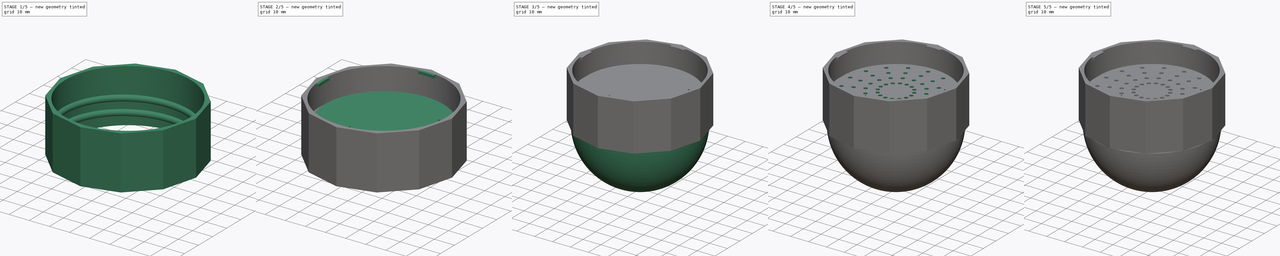
[diagram: build sequence overview — one tinted view per stage of 5, left to right]
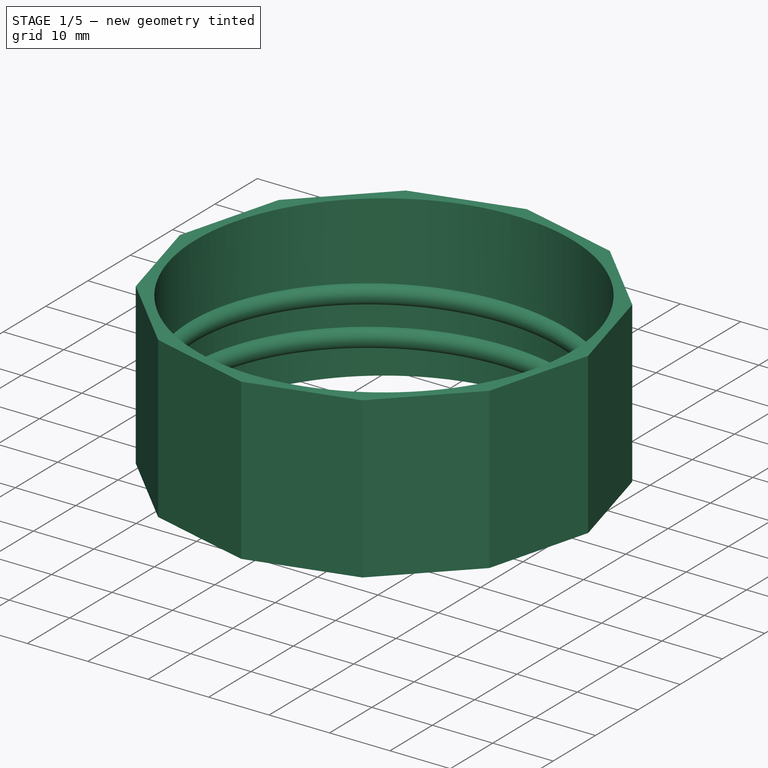
[diagram: stage 1 of 5 — iso view after this stage's code; geometry added in this stage tinted green]
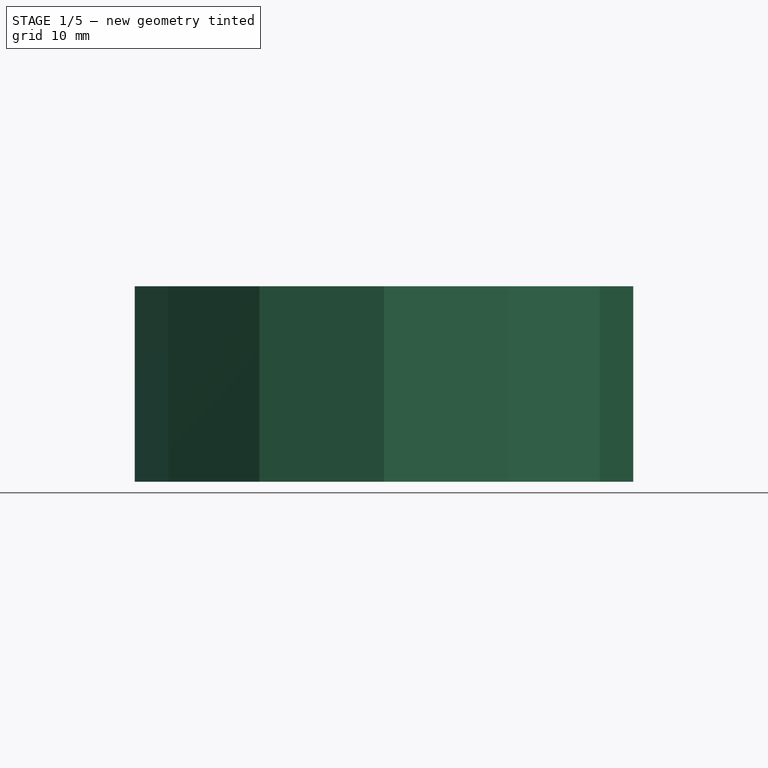
[diagram: stage 1 of 5 — front view after this stage's code; geometry added in this stage tinted green]
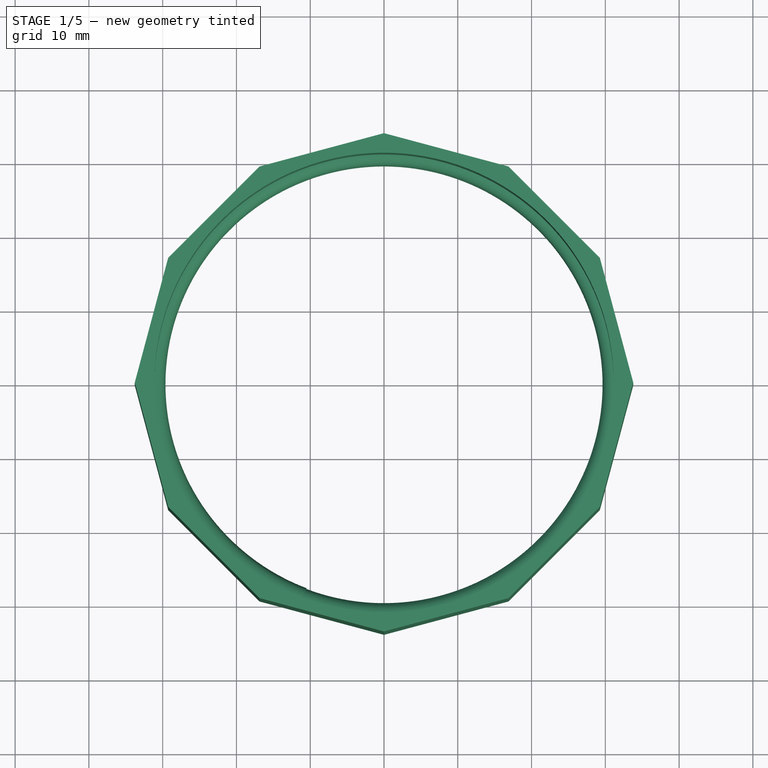
[diagram: stage 1 of 5 — top view after this stage's code; geometry added in this stage tinted green]
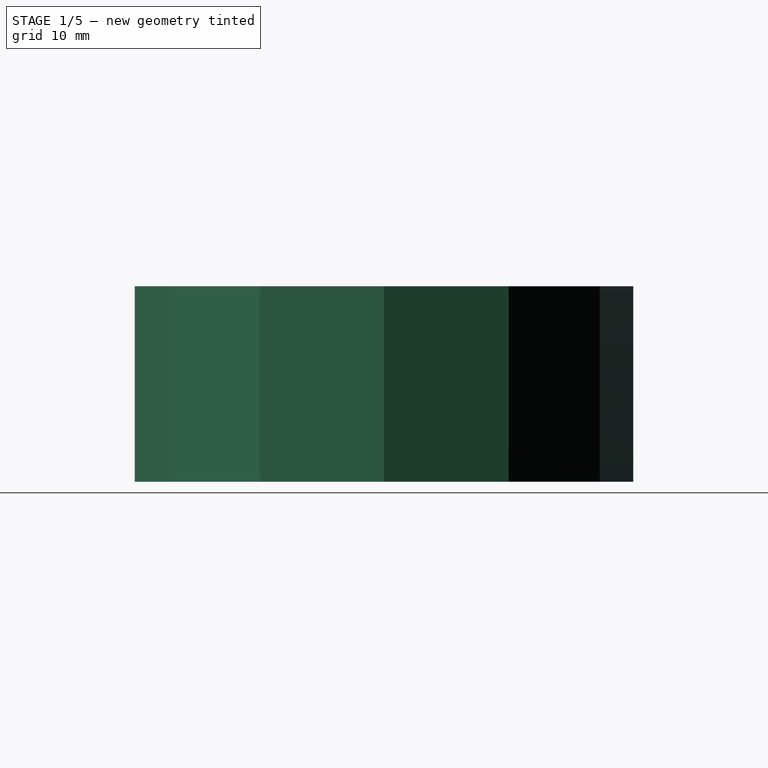
[diagram: stage 1 of 5 — right view after this stage's code; geometry added in this stage tinted green]
FCSTD DOCUMENT  (FreeCAD 2023.131R26244 +5365 (Git))
Label: Mason Jar Desiccant Lid - Flanged
License: All rights reserved
LicenseURL: http://en.wikipedia.org/wiki/All_rights_reserved
objects: Sketcher::SketchObject×10, PartDesign::Hole×4, PartDesign::Pad×3, PartDesign::AdditiveHelix×2, PartDesign::PolarPattern×2, PartDesign::Body×2, Spreadsheet::Sheet×1, PartDesign::AdditiveSphere×1, PartDesign::SubtractiveSphere×1, PartDesign::Pocket×1, PartDesign::Fillet×1
note: 67 computed .brp shape members not serialized (recipe doc carries the construction recipe); baked Part::Feature solids carry a one-line shape summary decoded from their .brp

FEATURE [Spreadsheet::Sheet] Spreadsheet  label="Parameters"
  PythonMode = false
  ShowCells = 0
  TreeRank = 1
  cells = A2=Ring Inner Diameter; B2(Ring_Inner_Diameter)=62.25; C2=Should be large enough to fit over the threads on the glass jar.; A3=Ring Min Thickness; B3(Ring_Min_Thickness)=1.5; C3=The thickness of the thinnest part of the ring.; A4=Glass Jar Ring Height; B4(Jar_Ring_Height)=10.5; C4=How much material will screw onto the glass jar.; A5=Desiccant Ring Height; B5(Desiccant_Right_Height)=16; C5=How much material will screw onto the desiccant container.; A6=Desiccant Wall Thickness; B6(Desiccant_Wall_Thickness)=1; C6=How thick the walls of the desiccant container should be.; A7=Piece Tolerance; B7(Tolerance)=0.2; C7=The tolerance between the Jar Lid and Desiccant Container.; A9=Thread Pitch; B9(Thread_Pitch)=6.5; C9=The thread pitch.; A10=Thread Width; B10(Thread_Width)=3; C10=The distance between two thread on the glass jar.; A11=Thread Height; B11(Thread_Height)=3; C11=The height of the threads from the inner (vertical) survace of the lid.; A12=Thread Offset; B12(Thread_Offset)=2; C12=Distance from the bottom or top of the ring where the threads start.; A14=Flange Height; B14(Flange_Height)=1.3; C14=The height of the threads from the inner survace of the lid.; A15=Flange Length; B15(Flange_Length)=8; C15=The linear length of each flange.; A16=Flange Count; B16(Flange_Count)=4; C16=The number of flanges to create; A18=Desiccant Opening Type; B18(Desiccant_Opening_Type)=Slot; C18=The type of opening to allow the desiccant to be inserted. One of the following: Hole, Slot, Both; A19=Hole Opening Diameter; B19(Hole_Opening_Diameter)==B5 - 2 * B6; C19=The diameter of the desiccant opening if "Hole" or "Both" is selected for the type.; A20=Slot Opening Width; B20(Slot_Opening_Width)=35; C20=The width of the desiccant opening if "Slot" or "Both" is selected for the type.; A21=Slot Opening Height; B21(Slot_Opening_Height)=8; C21=The height of the desiccant opening if "Slot" or "Both" is selected for the type.; A22=Desiccant Hole Diameter; B22(Desiccant_Hole_Diameter)=2; C22=The size of the holes in the bottom of the desiccant chamber.
FEATURE [Sketcher::SketchObject] Sketch
  ArcFitTolerance = 1e-06
  AttachmentSupport = -> [XY_Plane]
  ExternalBSplineMaxDegree = 5
  ExternalBSplineTolerance = 0.0001
  FullyConstrained = true
  InternalTolerance = 1e-06
  InvalidShape = false
  MakeInternals = false
  MapMode = 5
  Support = -> [XY_Plane]
  TreeRank = 14
  ValidateShape = true
  expr: Constraints[37] = <<Parameters>>.Ring_Inner_Diameter + <<Parameters>>.Ring_Min_Thickness * 2
  sketch-geometry (14):
    g0: LineSegment StartX=-29.2508 StartY=16.8879 StartZ=0 EndX=-33.7759 EndY=0 EndZ=0
    g1: LineSegment StartX=-33.7759 StartY=0 StartZ=0 EndX=-29.2508 EndY=-16.8879 EndZ=0
    g2: LineSegment StartX=-29.2508 StartY=-16.8879 StartZ=0 EndX=-16.8879 EndY=-29.2508 EndZ=0
    g3: LineSegment StartX=-16.8879 StartY=-29.2508 StartZ=0 EndX=3.979e-13 EndY=-33.7759 EndZ=0
    g4: LineSegment StartX=3.993e-13 StartY=-33.7759 StartZ=0 EndX=16.8879 EndY=-29.2508 EndZ=0
    g5: LineSegment StartX=16.8879 StartY=-29.2508 StartZ=0 EndX=29.2508 EndY=-16.8879 EndZ=0
    g6: LineSegment StartX=29.2508 StartY=-16.8879 StartZ=0 EndX=33.7759 EndY=2.665e-13 EndZ=0
    g7: LineSegment StartX=33.7759 StartY=2.65e-13 StartZ=0 EndX=29.2508 EndY=16.8879 EndZ=0
    g8: LineSegment StartX=29.2508 StartY=16.8879 StartZ=0 EndX=16.8879 EndY=29.2508 EndZ=0
    g9: LineSegment StartX=16.8879 StartY=29.2508 StartZ=0 EndX=-1.35e-13 EndY=33.7759 EndZ=0
    g10: LineSegment StartX=-1.334e-13 StartY=33.7759 StartZ=0 EndX=-16.8879 EndY=29.2508 EndZ=0
    g11: LineSegment StartX=-16.8879 StartY=29.2508 StartZ=0 EndX=-29.2508 EndY=16.8879 EndZ=0
    g12: Circle [constr] CenterX=0 CenterY=0 CenterZ=0 NormalX=0 NormalY=0 NormalZ=1 AngleXU=0 Radius=33.7759
    g13: Circle [constr] CenterX=0 CenterY=0 CenterZ=0 NormalX=0 NormalY=0 NormalZ=1 AngleXU=0 Radius=32.625
  constraints (30):
    c: Coincident(g0,g1)
    c: Coincident(g1,g2)
    c: Coincident(g2,g3)
    c: Coincident(g3,g4)
    c: Coincident(g4,g5)
    c: Coincident(g5,g6)
    c: Coincident(g6,g7)
    c: Coincident(g7,g8)
    c: Coincident(g8,g9)
    c: Coincident(g9,g10)
    c: Coincident(g10,g11)
    c: Coincident(g11,g0)
    c: Equal(g0, g1-g11) x11
    c: PointOnObject(g0,g12)
    c: PointOnObject(g1,g12)
    c: PointOnObject(g2,g12)
    c: PointOnObject(g3,g12)
    c: PointOnObject(g4,g12)
    c: PointOnObject(g5,g12)
    c: PointOnObject(g6,g12)
    c: PointOnObject(g7,g12)
    c: PointOnObject(g8,g12)
    c: PointOnObject(g9,g12)
    c: PointOnObject(g10,g12)
    c: PointOnObject(g11,g12)
    c: Coincident(g12,g-1)
    c: Coincident(g13,g12)
    c: Diameter(g13) = 65.25
    c: Tangent(g13,g9)
    c: PointOnObject(g0,g-1)
FEATURE [PartDesign::Pad] Pad  label="Lid"
  AddSubType = 0
  AlongSketchNormal = false
  AutoTaperInnerAngle = true
  CheckUpToFaceLimits = true
  ClaimChildren = false
  Direction = (0,0,1)
  Fit = 0
  FitJoin = 0
  InnerFit = 0
  InnerFitJoin = 0
  InvalidShape = false
  Length = 26.5
  Length2 = 100
  Linearize = true
  NewSolid = false
  Profile = -> Sketch
  Suppress = false
  TaperInnerAngle = 0
  TaperInnerAngleRev = 0
  TreeRank = 15
  Type = 0
  ValidateShape = true
  _ProfileBasedVersion = 1
  expr: Length = Spreadsheet.Jar_Ring_Height + <<Parameters>>.Desiccant_Right_Height
FEATURE [Sketcher::SketchObject] Sketch001  label="Hole"
  ArcFitTolerance = 1e-06
  AttachmentSupport = -> [Pad]
  ExternalBSplineMaxDegree = 5
  ExternalBSplineTolerance = 0.0001
  FullyConstrained = true
  InternalTolerance = 1e-06
  InvalidShape = false
  MakeInternals = false
  MapMode = 5
  Placement = pos=(0,0,26.5) rot=(0,0,1;0rad)
  Support = -> [Pad]
  TreeRank = 16
  ValidateShape = true
  expr: Constraints[1] = <<Parameters>>.Ring_Inner_Diameter
  sketch-geometry (1):
    g0: Circle CenterX=0 CenterY=0 CenterZ=0 NormalX=0 NormalY=0 NormalZ=1 AngleXU=0 Radius=31.125
  constraints (2):
    c: Coincident(g0,g-1)
    c: Diameter(g0) = 62.25
FEATURE [PartDesign::Hole] Hole  label="Bottle Opening"
  AddSubType = 1
  BaseFeature = -> Pad
  ClaimChildren = false
  CustomThreadClearance = 0
  Depth = 10.5
  DepthType = 1
  Diameter = 62.25
  DrillForDepth = false
  DrillPoint = 0
  DrillPointAngle = 118
  Fit = 0
  FitJoin = 0
  HoleCutCountersinkAngle = 90
  HoleCutCustomValues = false
  HoleCutDepth = 0
  HoleCutDiameter = 87.1
  HoleCutType = 0
  InnerFit = 0
  InnerFitJoin = 0
  InvalidShape = false
  Linearize = true
  ModelThread = false
  NewSolid = false
  Profile = -> Sketch001
  Suppress = false
  Tapered = false
  TaperedAngle = 90
  ThreadClass = 0
  ThreadDepth = 200.263
  ThreadDepthType = 0
  ThreadDirection = 0
  ThreadFit = 0
  ThreadSize = 0
  ThreadType = 0
  Threaded = false
  TreeRank = 17
  UseCustomThreadClearance = false
  ValidateShape = true
  _ProfileBasedVersion = 1
  expr: Depth = Spreadsheet.Jar_Ring_Height
  expr: Diameter = <<Parameters>>.Ring_Inner_Diameter
FEATURE [Sketcher::SketchObject] Sketch002  label="Thread Profile"
  ArcFitTolerance = 1e-06
  AttachmentSupport = -> [XZ_Plane]
  ExternalBSplineMaxDegree = 5
  ExternalBSplineTolerance = 0.0001
  FullyConstrained = true
  InternalTolerance = 1e-06
  InvalidShape = false
  MakeInternals = false
  MapMode = 5
  Placement = pos=(0,0,0) rot=(1,0,0;1.5708rad)
  Support = -> [XZ_Plane]
  TreeRank = 18
  ValidateShape = true
  expr: Constraints[1] = <<Parameters>>.Thread_Width
  expr: Constraints[2] = <<Parameters>>.Thread_Offset
  expr: Constraints[3] = -<<Parameters>>.Ring_Inner_Diameter / 2
  expr: Constraints[6] = <<Parameters>>.Thread_Width
  sketch-geometry (2):
    g0: LineSegment StartX=31.125 StartY=5 StartZ=0 EndX=31.125 EndY=2 EndZ=0
    g1: ArcOfCircle CenterX=31.125 CenterY=3.5 CenterZ=0 NormalX=0 NormalY=0 NormalZ=1 AngleXU=0 Radius=1.5 StartAngle=1.57079 EndAngle=4.71239
  constraints (7):
    c: Vertical(g0)
    c: Distance(g0,g0) = 3
    c: DistanceY(g-1,g0) = 2
    c: DistanceX(g0,g-1) = -31.125
    c: Coincident(g1,g0)
    c: Coincident(g1,g0)
    c: Diameter(g1) = 3
FEATURE [PartDesign::AdditiveHelix] Helix  label="Threads"
  AddSubType = 0
  Angle = 0
  Axis = (0,-2e-16,1)
  Base = (0,0,0)
  BaseFeature = -> Hole
  ClaimChildren = false
  Fit = 0
  FitJoin = 0
  Growth = 0
  HasBeenEdited = true
  Height = 11
  InnerFit = 0
  InnerFitJoin = 0
  InvalidShape = false
  LeftHanded = false
  Linearize = true
  Mode = 0
  NewSolid = false
  Outside = false
  Pitch = 6.5
  Profile = -> Sketch002
  ReferenceAxis = -> Sketch002 [V_Axis]
  Suppress = false
  TreeRank = 19
  Turns = 1.69231
  ValidateShape = true
  _ProfileBasedVersion = 1
  expr: Height = <<Parameters>>.Desiccant_Right_Height - <<Parameters>>.Thread_Height - <<Parameters>>.Thread_Offset
  expr: Pitch = <<Parameters>>.Thread_Pitch
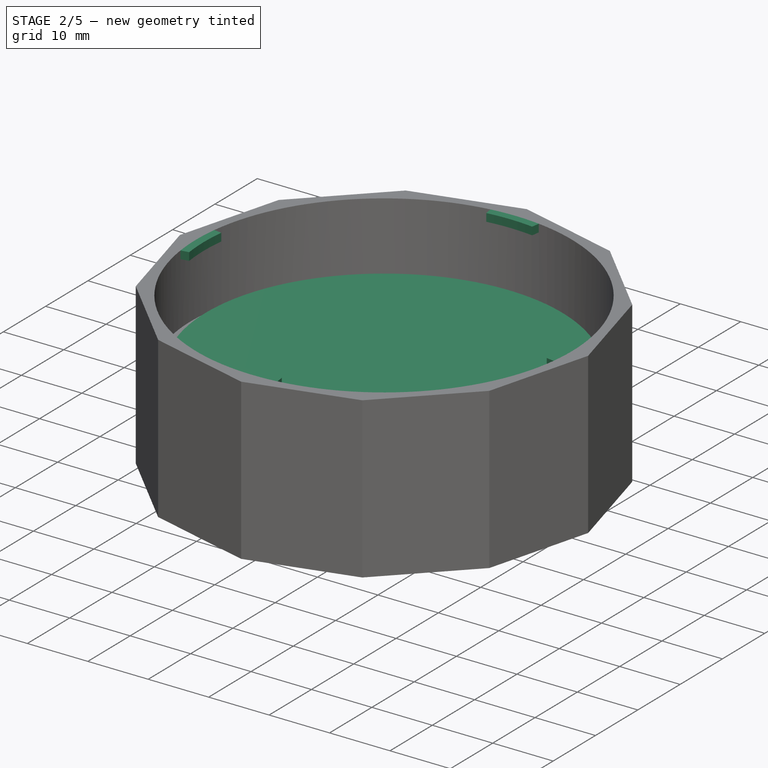
[diagram: stage 2 of 5 — iso view after this stage's code; geometry added in this stage tinted green]
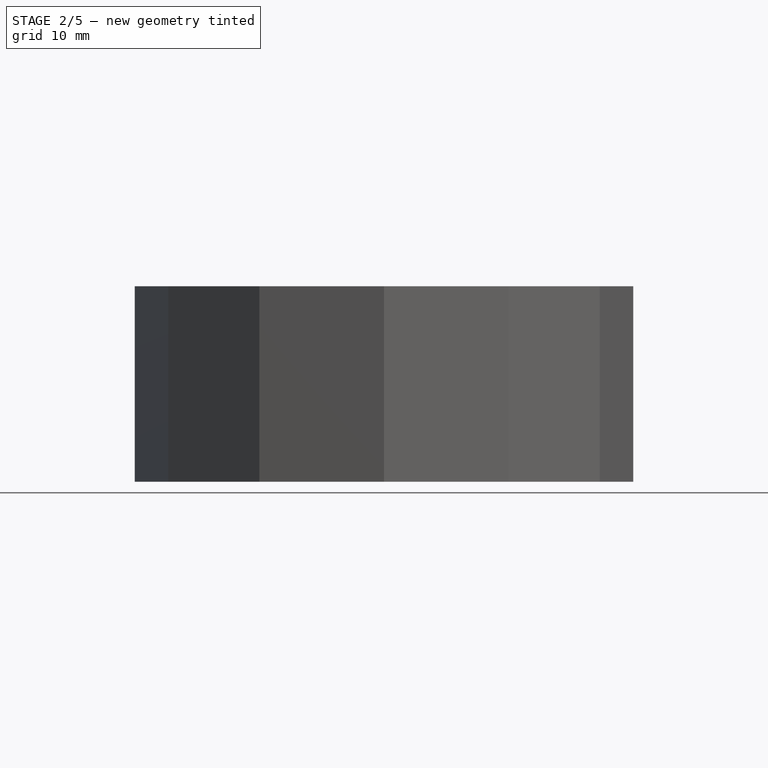
[diagram: stage 2 of 5 — front view after this stage's code; geometry added in this stage tinted green]
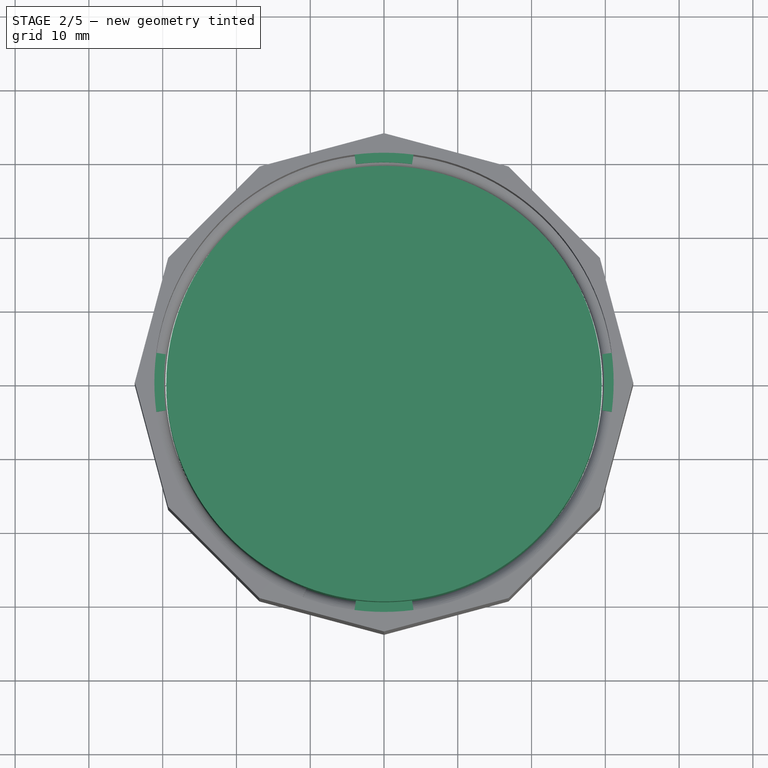
[diagram: stage 2 of 5 — top view after this stage's code; geometry added in this stage tinted green]
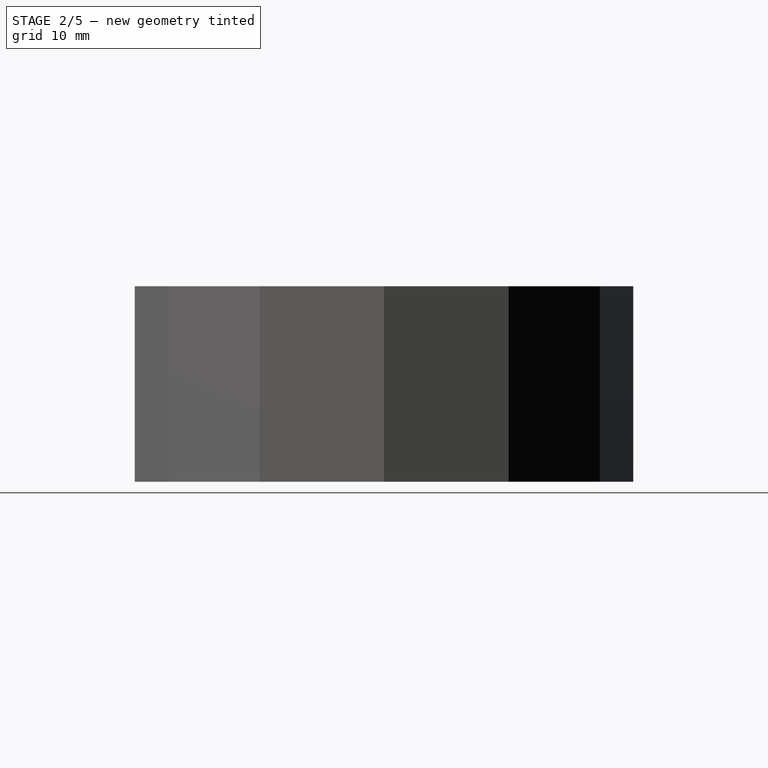
[diagram: stage 2 of 5 — right view after this stage's code; geometry added in this stage tinted green]
FEATURE [Sketcher::SketchObject] Sketch003
  ArcFitTolerance = 1e-06
  AttachmentSupport = -> [XY_Plane001]
  ExternalBSplineMaxDegree = 5
  ExternalBSplineTolerance = 0.0001
  FullyConstrained = true
  InternalTolerance = 1e-06
  InvalidShape = false
  MakeInternals = false
  MapMode = 5
  Support = -> [XY_Plane001]
  TreeRank = 30
  ValidateShape = true
  expr: Constraints[1] = <<Parameters>>.Ring_Inner_Diameter - <<Parameters>>.Thread_Height - <<Parameters>>.Tolerance
  sketch-geometry (1):
    g0: Circle CenterX=0 CenterY=0 CenterZ=0 NormalX=0 NormalY=0 NormalZ=1 AngleXU=0 Radius=29.525
  constraints (2):
    c: Coincident(g0,g-1)
    c: Diameter(g0) = 59.05
FEATURE [PartDesign::Pad] Pad001  label="Desiccant Body"
  AddSubType = 0
  AlongSketchNormal = false
  AutoTaperInnerAngle = true
  CheckUpToFaceLimits = true
  ClaimChildren = false
  Direction = (0,0,1)
  Fit = 0
  FitJoin = 0
  InnerFit = 0
  InnerFitJoin = 0
  InvalidShape = false
  Length = 16
  Length2 = 100
  Linearize = true
  NewSolid = false
  Profile = -> Sketch003
  Suppress = false
  TaperInnerAngle = 0
  TaperInnerAngleRev = 0
  TreeRank = 31
  Type = 0
  ValidateShape = true
  _ProfileBasedVersion = 1
  expr: Length = <<Parameters>>.Desiccant_Right_Height
FEATURE [PartDesign::Body] Body001  label="Desiccant Container"
  AutoGroupSolids = false
  ClaimAllChildren = false
  ExportMode = 0
  Group = -> [Sketch003,Pad001,Sketch004,Hole001,Sphere,Sphere001,Sketch005,Helix001,Sketch006,Hole002,PolarPattern,Sketch007,Hole003,Sketch008,Pocket,Fillet]
  InvalidShape = false
  Origin = -> Origin001
  Tip = -> Fillet
  TreeRank = 29
  ValidateShape = true
  _ExportChildren = -> [Pad001,Hole001,Sphere,Sphere001,Helix001,Hole002,PolarPattern,Hole003,Pocket,Fillet]
  _GroupVersion = 1
FEATURE [Sketcher::SketchObject] Sketch009  label="Flange Sketch"
  ArcFitTolerance = 1e-06
  AttachmentSupport = -> [Helix]
  ExternalBSplineMaxDegree = 5
  ExternalBSplineTolerance = 0.0001
  FullyConstrained = true
  InternalTolerance = 1e-06
  InvalidShape = false
  MakeInternals = false
  MapMode = 5
  Placement = pos=(0,0,26.5) rot=(0,0,1;0rad)
  Support = -> [Helix]
  TreeRank = 47
  ValidateShape = true
  expr: Constraints[2] = <<Parameters>>.Ring_Inner_Diameter
  expr: Constraints[3] = <<Parameters>>.Ring_Inner_Diameter - 2 * <<Parameters>>.Flange_Height
  expr: Constraints[4] = <<Parameters>>.Flange_Length / 2
  expr: Constraints[5] = <<Parameters>>.Flange_Length / 2
  expr: Constraints[6] = <<Parameters>>.Flange_Length / 2 - 0.2
  expr: Constraints[7] = <<Parameters>>.Flange_Length / 2 - 0.2
  sketch-geometry (8):
    g0: ArcOfCircle CenterX=0 CenterY=0 CenterZ=0 NormalX=0 NormalY=0 NormalZ=1 AngleXU=0 Radius=31.125 StartAngle=3.01272 EndAngle=3.27046
    g1: ArcOfCircle CenterX=0 CenterY=0 CenterZ=0 NormalX=0 NormalY=0 NormalZ=1 AngleXU=0 Radius=29.825 StartAngle=3.01384 EndAngle=3.26935
    g2: GeomPoint [constr] X=-30.8669 Y=4 Z=0
    g3: GeomPoint [constr] X=-29.5819 Y=3.8 Z=0
    g4: GeomPoint [constr] X=-29.5819 Y=-3.8 Z=0
    g5: GeomPoint [constr] X=-30.8669 Y=-4 Z=0
    g6: LineSegment StartX=-30.8669 StartY=4 StartZ=0 EndX=-29.5819 EndY=3.8 EndZ=0
    g7: LineSegment StartX=-30.8669 StartY=-4 StartZ=0 EndX=-29.5819 EndY=-3.8 EndZ=0
  constraints (16):
    c: Coincident(g0,g-1)
    c: Coincident(g1,g0)
    c: Diameter(g0) = 62.25
    c: Diameter(g1) = 59.65
    c: DistanceY(g0,g2) = 4
    c: DistanceY(g5,g0) = 4
    c: DistanceY(g0,g3) = 3.8
    c: DistanceY(g4,g0) = 3.8
    c: Coincident(g6,g0)
    c: Coincident(g6,g1)
    c: Coincident(g7,g0)
    c: Coincident(g7,g1)
    c: Coincident(g0,g5)
    c: Coincident(g1,g4)
    c: Coincident(g0,g2)
    c: Coincident(g1,g3)
FEATURE [PartDesign::Pad] Pad002  label="Flanges"
  AddSubType = 0
  AlongSketchNormal = false
  AutoTaperInnerAngle = true
  BaseFeature = -> Helix
  CheckUpToFaceLimits = true
  ClaimChildren = false
  Direction = (0,0,1)
  Fit = 0
  FitJoin = 0
  InnerFit = 0
  InnerFitJoin = 0
  InvalidShape = false
  Length = 1.3
  Length2 = 100
  Linearize = true
  NewSolid = false
  Profile = -> Sketch009
  Reversed = true
  Suppress = false
  TaperInnerAngle = 0
  TaperInnerAngleRev = 0
  TreeRank = 48
  Type = 0
  ValidateShape = true
  _ProfileBasedVersion = 1
  expr: Length = <<Parameters>>.Flange_Height
FEATURE [PartDesign::PolarPattern] PolarPattern001
  AddSubType = 0
  Angle = 360
  Axis = -> Sketch009 [N_Axis]
  BaseFeature = -> Pad002
  CopyShape = false
  InvalidShape = false
  NewSolid = false
  Occurrences = 4
  OriginalSubs = -> [Pad002]
  Originals = -> [Pad002]
  ParallelTransform = true
  SubTransform = true
  Suppress = false
  TreeRank = 49
  ValidateShape = true
  _Version = 3
  expr: Occurrences = <<Parameters>>.Flange_Count
FEATURE [PartDesign::Body] Body  label="Jar Lid"
  AutoGroupSolids = false
  ClaimAllChildren = false
  ExportMode = 0
  Group = -> [Sketch,Pad,Sketch001,Hole,Sketch002,Helix,Sketch009,Pad002,PolarPattern001]
  InvalidShape = false
  Origin = -> Origin
  Tip = -> PolarPattern001
  TreeRank = 13
  ValidateShape = true
  _ExportChildren = -> [Pad,Hole,Helix,Pad002,PolarPattern001]
  _GroupVersion = 1
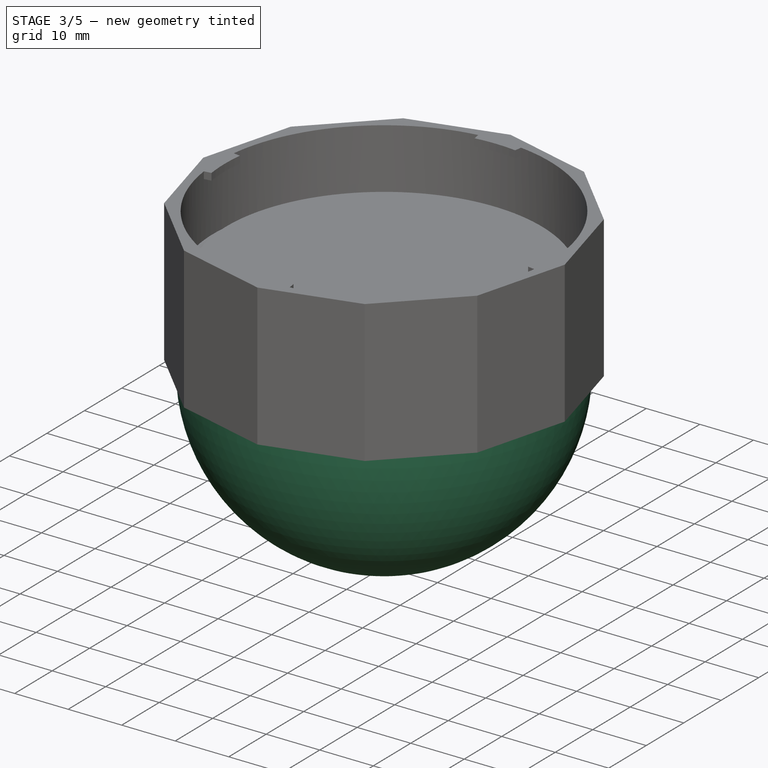
[diagram: stage 3 of 5 — iso view after this stage's code; geometry added in this stage tinted green]
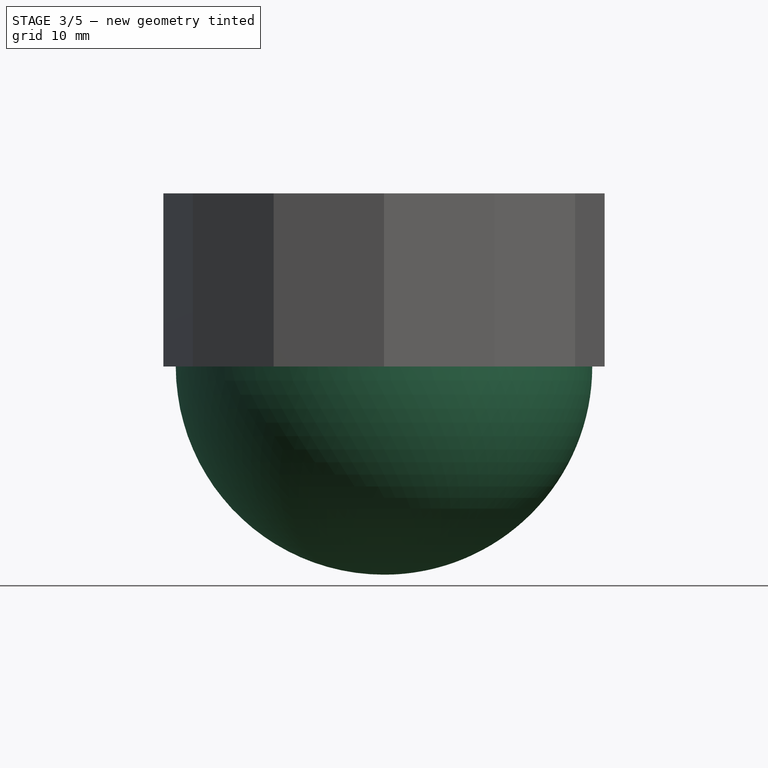
[diagram: stage 3 of 5 — front view after this stage's code; geometry added in this stage tinted green]
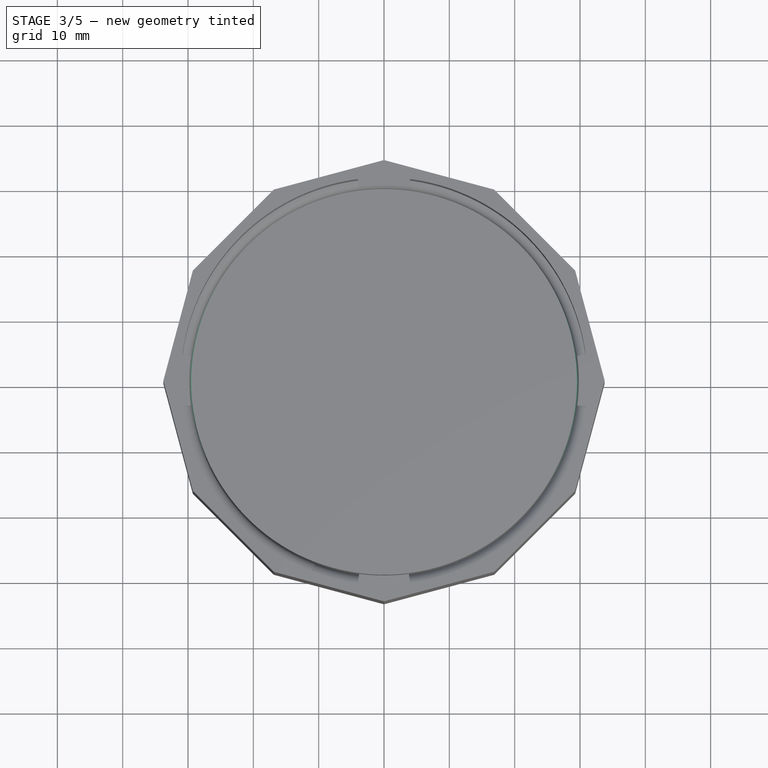
[diagram: stage 3 of 5 — top view after this stage's code; geometry added in this stage tinted green]
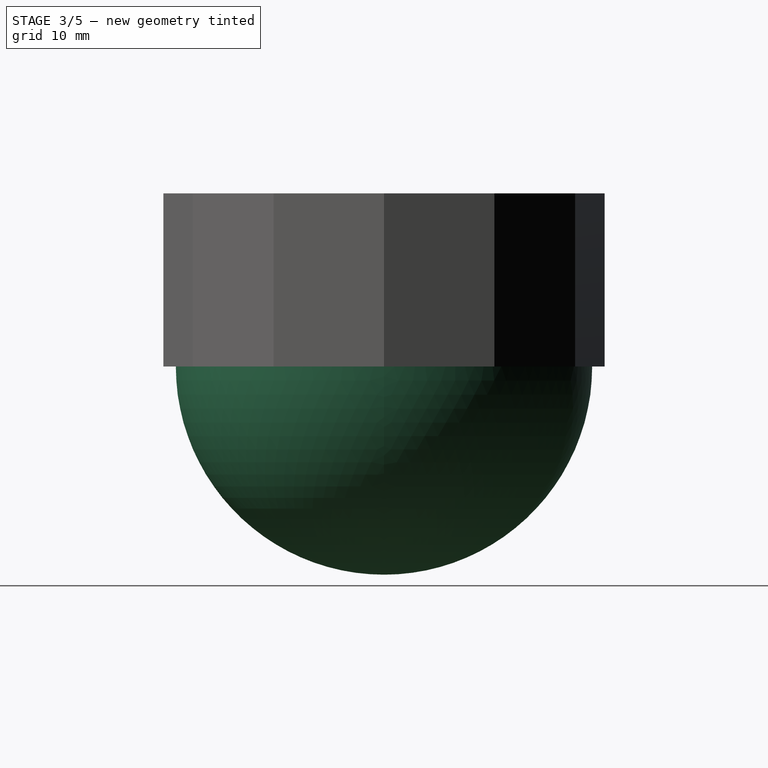
[diagram: stage 3 of 5 — right view after this stage's code; geometry added in this stage tinted green]
FEATURE [Sketcher::SketchObject] Sketch004
  ArcFitTolerance = 1e-06
  AttachmentSupport = -> [Pad001]
  ExternalBSplineMaxDegree = 5
  ExternalBSplineTolerance = 0.0001
  FullyConstrained = true
  InternalTolerance = 1e-06
  InvalidShape = false
  MakeInternals = false
  MapMode = 5
  Placement = pos=(0,0,0) rot=(1,0,0;3.14159rad)
  Support = -> [Pad001]
  TreeRank = 32
  ValidateShape = true
  expr: Constraints[1] = <<Parameters>>.Ring_Inner_Diameter - <<Parameters>>.Thread_Height - <<Parameters>>.Tolerance - 2 * <<Parameters>>.Desiccant_Wall_Thickness
  sketch-geometry (1):
    g0: Circle CenterX=0 CenterY=0 CenterZ=0 NormalX=0 NormalY=0 NormalZ=1 AngleXU=0 Radius=28.525
  constraints (2):
    c: Coincident(g0,g-1)
    c: Diameter(g0) = 57.05
FEATURE [PartDesign::Hole] Hole001  label="Cylindrical Hole"
  AddSubType = 1
  BaseFeature = -> Pad001
  ClaimChildren = false
  CustomThreadClearance = 0
  Depth = 15
  DepthType = 0
  Diameter = 57.05
  DrillForDepth = false
  DrillPoint = 0
  DrillPointAngle = 118
  Fit = 0
  FitJoin = 0
  HoleCutCountersinkAngle = 90
  HoleCutCustomValues = false
  HoleCutDepth = 0
  HoleCutDiameter = 81.9
  HoleCutType = 0
  InnerFit = 0
  InnerFitJoin = 0
  InvalidShape = false
  Linearize = true
  ModelThread = false
  NewSolid = false
  Profile = -> Sketch004
  Suppress = false
  Tapered = false
  TaperedAngle = 90
  ThreadClass = 0
  ThreadDepth = 15
  ThreadDepthType = 0
  ThreadDirection = 0
  ThreadFit = 0
  ThreadSize = 0
  ThreadType = 0
  Threaded = false
  TreeRank = 33
  UseCustomThreadClearance = false
  ValidateShape = true
  _ProfileBasedVersion = 1
  expr: Depth = <<Parameters>>.Desiccant_Right_Height - 1
  expr: Diameter = <<Parameters>>.Ring_Inner_Diameter - <<Parameters>>.Thread_Height - <<Parameters>>.Tolerance - 2 * <<Parameters>>.Desiccant_Wall_Thickness
FEATURE [PartDesign::AdditiveSphere] Sphere  label="Top Hemisphere"
  AddSubType = 0
  Angle1 = -90
  Angle2 = 0
  Angle3 = 360
  AttacherType = Attacher::AttachEngine3D
  BaseFeature = -> Hole001
  InvalidShape = false
  NewSolid = false
  Radius = 31.875
  Suppress = false
  TreeRank = 35
  ValidateShape = true
  expr: Radius = (<<Parameters>>.Ring_Inner_Diameter + <<Parameters>>.Ring_Min_Thickness) / 2
FEATURE [PartDesign::SubtractiveSphere] Sphere001  label="Hemishpherical Hole"
  AddSubType = 1
  Angle1 = -90
  Angle2 = 0
  Angle3 = 360
  AttacherType = Attacher::AttachEngine3D
  BaseFeature = -> Sphere
  InvalidShape = false
  NewSolid = false
  Radius = 28.525
  Suppress = false
  TreeRank = 36
  ValidateShape = true
  expr: Radius = (<<Parameters>>.Ring_Inner_Diameter - <<Parameters>>.Thread_Height - <<Parameters>>.Tolerance - 2 * <<Parameters>>.Desiccant_Wall_Thickness) / 2
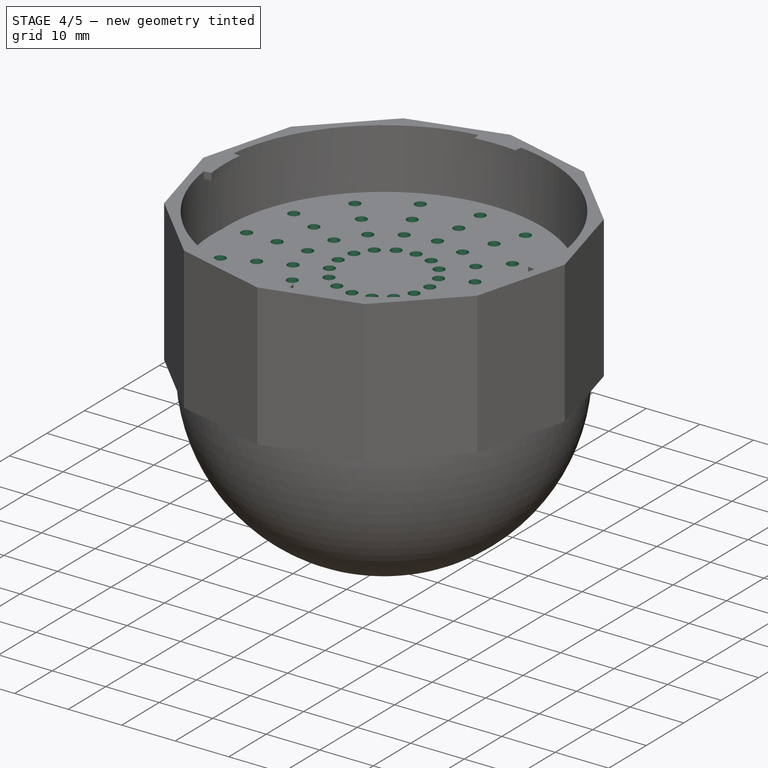
[diagram: stage 4 of 5 — iso view after this stage's code; geometry added in this stage tinted green]
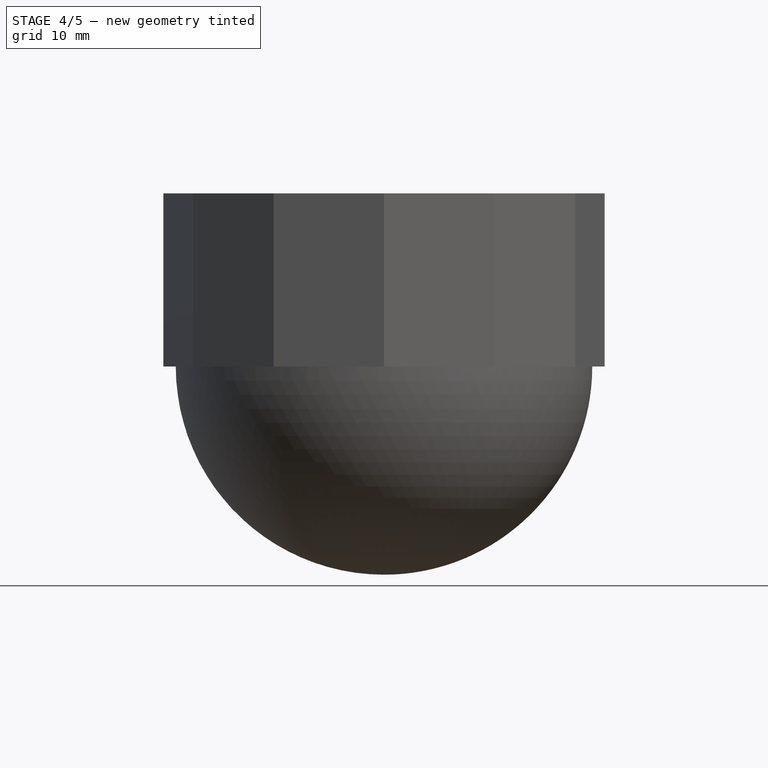
[diagram: stage 4 of 5 — front view after this stage's code; geometry added in this stage tinted green]
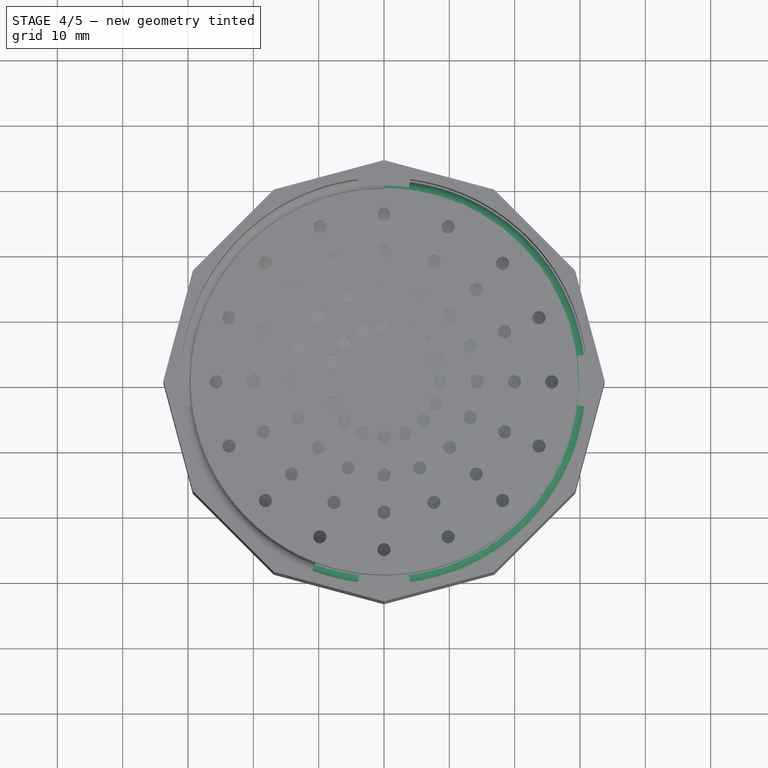
[diagram: stage 4 of 5 — top view after this stage's code; geometry added in this stage tinted green]
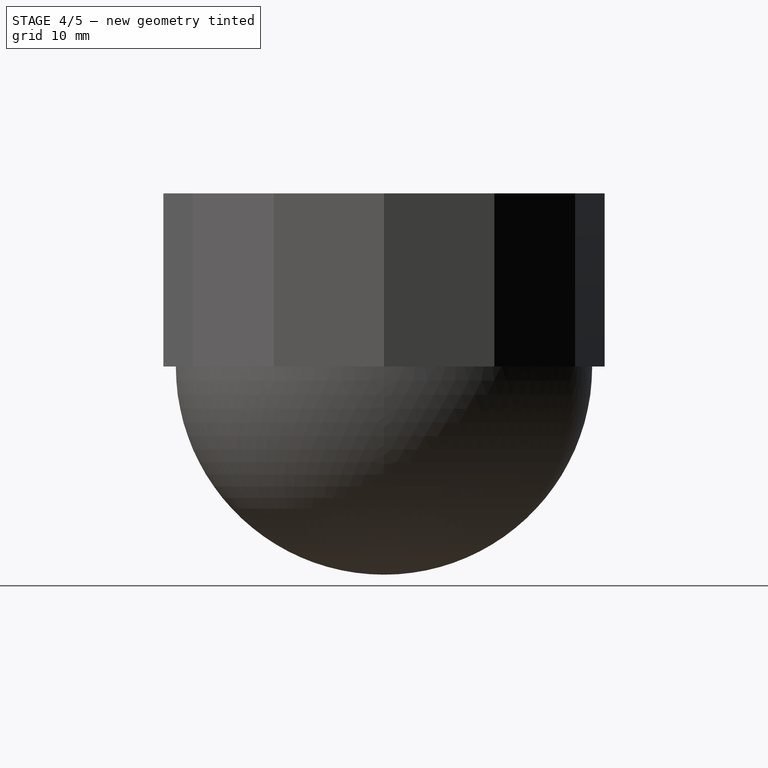
[diagram: stage 4 of 5 — right view after this stage's code; geometry added in this stage tinted green]
FEATURE [Sketcher::SketchObject] Sketch005  label="Thread Profile 2"
  ArcFitTolerance = 1e-06
  AttachmentSupport = -> [YZ_Plane001]
  ExternalBSplineMaxDegree = 5
  ExternalBSplineTolerance = 0.0001
  FullyConstrained = true
  InternalTolerance = 1e-06
  InvalidShape = false
  MakeInternals = false
  MapMode = 5
  Placement = pos=(0,0,0) rot=(0.57735,0.57735,0.57735;2.0944rad)
  Support = -> [YZ_Plane001]
  TreeRank = 37
  ValidateShape = true
  expr: Constraints[1] = <<Parameters>>.Thread_Width
  expr: Constraints[4] = <<Parameters>>.Thread_Height
  expr: Constraints[5] = -(<<Parameters>>.Ring_Inner_Diameter - <<Parameters>>.Thread_Height - 0.2) / 2
  expr: Constraints[6] = <<Parameters>>.Desiccant_Right_Height - <<Parameters>>.Thread_Offset
  sketch-geometry (2):
    g0: LineSegment StartX=29.525 StartY=11 StartZ=0 EndX=29.525 EndY=14 EndZ=0
    g1: ArcOfCircle CenterX=29.525 CenterY=12.5 CenterZ=0 NormalX=0 NormalY=0 NormalZ=1 AngleXU=0 Radius=1.5 StartAngle=4.71239 EndAngle=7.85398
  constraints (7):
    c: Vertical(g0)
    c: Distance(g0,g0) = 3
    c: Coincident(g1,g0)
    c: Coincident(g1,g0)
    c: Diameter(g1) = 3
    c: DistanceX(g0,g-1) = -29.525
    c: DistanceY(g-1,g0) = 14
FEATURE [PartDesign::AdditiveHelix] Helix001  label="Threads 2"
  AddSubType = 0
  Angle = 0
  Axis = (-2e-16,3e-16,1)
  Base = (0,0,0)
  BaseFeature = -> Sphere001
  ClaimChildren = false
  Fit = 0
  FitJoin = 0
  Growth = 0
  HasBeenEdited = true
  Height = 9
  InnerFit = 0
  InnerFitJoin = 0
  InvalidShape = false
  LeftHanded = false
  Linearize = true
  Mode = 0
  NewSolid = false
  Outside = false
  Pitch = 6.5
  Profile = -> Sketch005
  ReferenceAxis = -> Sketch005 [V_Axis]
  Reversed = true
  Suppress = false
  TreeRank = 38
  Turns = 1.38462
  ValidateShape = true
  _ProfileBasedVersion = 1
  expr: Height = <<Parameters>>.Desiccant_Right_Height - 2 * <<Parameters>>.Thread_Offset - <<Parameters>>.Thread_Width
  expr: Pitch = <<Parameters>>.Thread_Pitch
FEATURE [Sketcher::SketchObject] Sketch006
  ArcFitTolerance = 1e-06
  AttachmentSupport = -> [Helix001]
  ExternalBSplineMaxDegree = 5
  ExternalBSplineTolerance = 0.0001
  FullyConstrained = true
  InternalTolerance = 1e-06
  InvalidShape = false
  MakeInternals = false
  MapMode = 5
  Placement = pos=(0,0,16) rot=(0,0,1;0rad)
  Support = -> [Helix001]
  TreeRank = 39
  ValidateShape = true
  expr: Constraints[10] = <<Parameters>>.Desiccant_Hole_Diameter
  expr: Constraints[11] = (<<Parameters>>.Ring_Inner_Diameter - <<Parameters>>.Thread_Height - 2.2) / 2 * 0.3
  expr: Constraints[1] = <<Parameters>>.Desiccant_Hole_Diameter
  expr: Constraints[2] = (<<Parameters>>.Ring_Inner_Diameter - <<Parameters>>.Thread_Height - 2.2) / 2 * 0.9
  expr: Constraints[4] = <<Parameters>>.Desiccant_Hole_Diameter
  expr: Constraints[5] = (<<Parameters>>.Ring_Inner_Diameter - <<Parameters>>.Thread_Height - 2.2) / 2 * 0.7
  expr: Constraints[7] = <<Parameters>>.Desiccant_Hole_Diameter
  expr: Constraints[8] = (<<Parameters>>.Ring_Inner_Diameter - <<Parameters>>.Thread_Height - 2.2) / 2 * 0.5
  sketch-geometry (4):
    g0: Circle CenterX=-25.6725 CenterY=0 CenterZ=0 NormalX=0 NormalY=0 NormalZ=1 AngleXU=0 Radius=1
    g1: Circle CenterX=-19.9675 CenterY=0 CenterZ=0 NormalX=0 NormalY=0 NormalZ=1 AngleXU=0 Radius=1
    g2: Circle CenterX=-14.2625 CenterY=0 CenterZ=0 NormalX=0 NormalY=0 NormalZ=1 AngleXU=0 Radius=1
    g3: Circle CenterX=-8.5575 CenterY=0 CenterZ=0 NormalX=0 NormalY=0 NormalZ=1 AngleXU=0 Radius=1
  constraints (12):
    c: PointOnObject(g0,g-1)
    c: Diameter(g0) = 2
    c: DistanceX(g0,g-1) = 25.6725
    c: PointOnObject(g1,g-1)
    c: Diameter(g1) = 2
    c: DistanceX(g1,g-1) = 19.9675
    c: PointOnObject(g2,g-1)
    c: Diameter(g2) = 2
    c: DistanceX(g2,g-1) = 14.2625
    c: PointOnObject(g3,g-1)
    c: Diameter(g3) = 2
    c: DistanceX(g3,g-1) = 8.5575
FEATURE [PartDesign::Hole] Hole002  label="Desiccant Holes"
  AddSubType = 1
  BaseFeature = -> Helix001
  ClaimChildren = false
  CustomThreadClearance = 0
  Depth = 2
  DepthType = 0
  Diameter = 2
  DrillForDepth = false
  DrillPoint = 0
  DrillPointAngle = 118
  Fit = 0
  FitJoin = 0
  HoleCutCountersinkAngle = 90
  HoleCutCustomValues = false
  HoleCutDepth = 0
  HoleCutDiameter = 6.1
  HoleCutType = 0
  InnerFit = 0
  InnerFitJoin = 0
  InvalidShape = false
  Linearize = true
  ModelThread = false
  NewSolid = false
  Profile = -> Sketch006
  Suppress = false
  Tapered = false
  TaperedAngle = 90
  ThreadClass = 0
  ThreadDepth = 2
  ThreadDepthType = 0
  ThreadDirection = 0
  ThreadFit = 0
  ThreadSize = 0
  ThreadType = 0
  Threaded = false
  TreeRank = 40
  UseCustomThreadClearance = false
  ValidateShape = true
  _ProfileBasedVersion = 1
  expr: Diameter = <<Parameters>>.Desiccant_Hole_Diameter
FEATURE [PartDesign::PolarPattern] PolarPattern
  AddSubType = 0
  Angle = 360
  Axis = -> Sketch006 [N_Axis]
  BaseFeature = -> Hole002
  CopyShape = false
  InvalidShape = false
  NewSolid = false
  Occurrences = 16
  OriginalSubs = -> [Hole002]
  Originals = -> [Hole002]
  ParallelTransform = true
  SubTransform = true
  Suppress = false
  TreeRank = 41
  ValidateShape = true
  _Version = 3
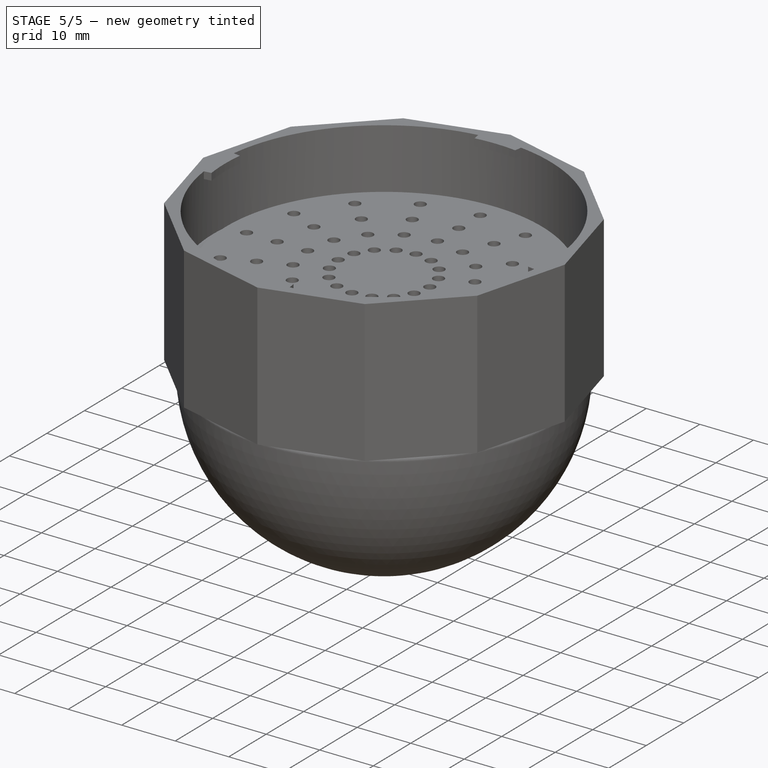
[diagram: stage 5 of 5 — iso view after this stage's code; geometry added in this stage tinted green]
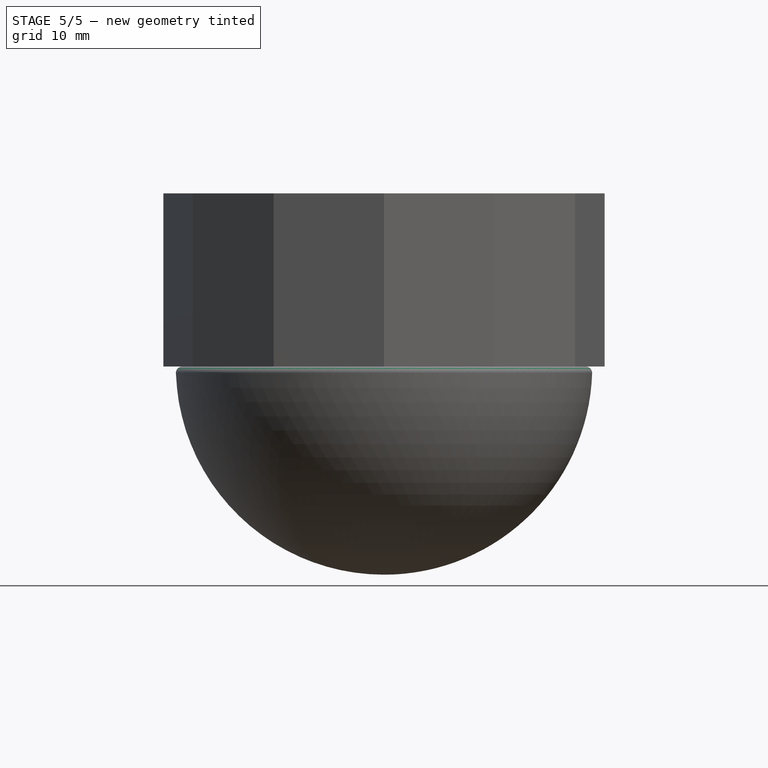
[diagram: stage 5 of 5 — front view after this stage's code; geometry added in this stage tinted green]
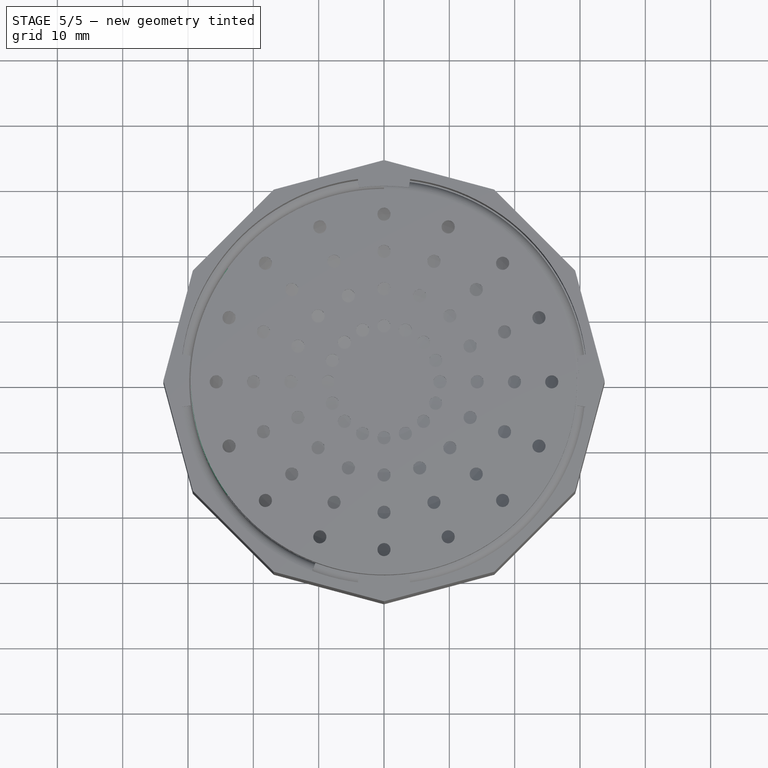
[diagram: stage 5 of 5 — top view after this stage's code; geometry added in this stage tinted green]
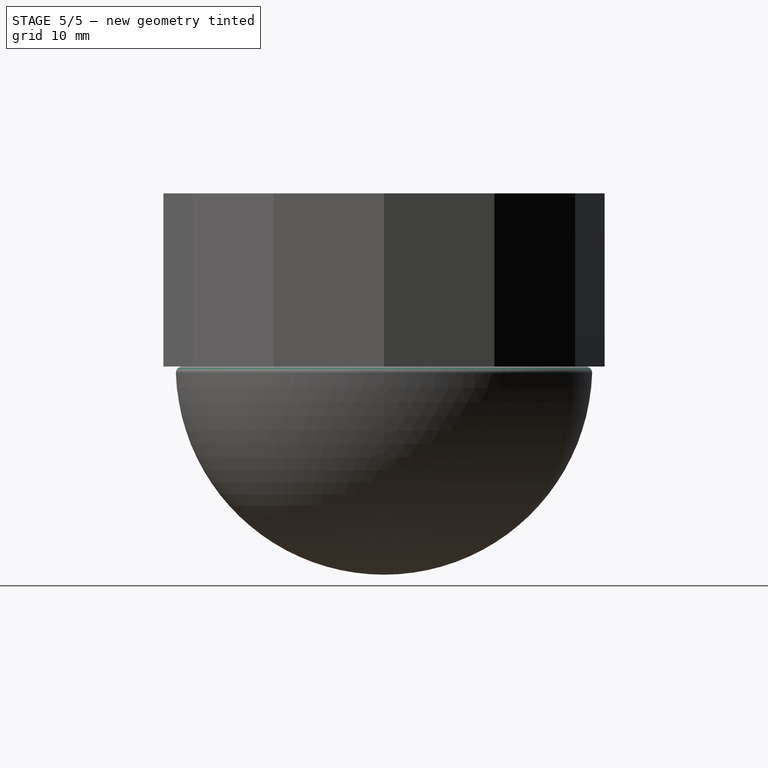
[diagram: stage 5 of 5 — right view after this stage's code; geometry added in this stage tinted green]
FEATURE [Sketcher::SketchObject] Sketch007  label="Desiccant Chamber Hole Drawing"
  ArcFitTolerance = 1e-06
  AttachmentSupport = -> [YZ_Plane001]
  ExternalBSplineMaxDegree = 5
  ExternalBSplineTolerance = 0.0001
  FullyConstrained = true
  InternalTolerance = 1e-06
  InvalidShape = false
  MakeInternals = false
  MapMode = 5
  Placement = pos=(0,0,0) rot=(0.57735,0.57735,0.57735;2.0944rad)
  Support = -> [YZ_Plane001]
  TreeRank = 42
  ValidateShape = true
  expr: Constraints[0] = <<Parameters>>.Hole_Opening_Diameter
  expr: Constraints[1] = <<Parameters>>.Desiccant_Right_Height / 2
  sketch-geometry (1):
    g0: Circle CenterX=0 CenterY=8 CenterZ=0 NormalX=0 NormalY=0 NormalZ=1 AngleXU=0 Radius=7
  constraints (3):
    c: Diameter(g0) = 14
    c: DistanceY(g-1,g0) = 8
    c: DistanceX(g0,g-1) = 0
FEATURE [PartDesign::Hole] Hole003  label="Desiccant Chamber Hole"
  AddSubType = 1
  BaseFeature = -> PolarPattern
  ClaimChildren = false
  CustomThreadClearance = 0
  Depth = 0.1
  DepthType = 0
  Diameter = 14
  DrillForDepth = false
  DrillPoint = 0
  DrillPointAngle = 118
  Fit = 0
  FitJoin = 0
  HoleCutCountersinkAngle = 90
  HoleCutCustomValues = false
  HoleCutDepth = 0
  HoleCutDiameter = 14.1
  HoleCutType = 0
  InnerFit = 0
  InnerFitJoin = 0
  InvalidShape = false
  Linearize = true
  ModelThread = false
  NewSolid = false
  Profile = -> Sketch007
  Suppress = false
  Tapered = false
  TaperedAngle = 90
  ThreadClass = 0
  ThreadDepth = 0.1
  ThreadDepthType = 0
  ThreadDirection = 0
  ThreadFit = 0
  ThreadSize = 0
  ThreadType = 0
  Threaded = false
  TreeRank = 43
  UseCustomThreadClearance = false
  ValidateShape = true
  _ProfileBasedVersion = 1
  expr: Depth = <<Parameters>>.Desiccant_Opening_Type != <<Slot>> ? <<Parameters>>.Ring_Inner_Diameter * 2 : 0.1
  expr: Diameter = <<Parameters>>.Hole_Opening_Diameter
FEATURE [Sketcher::SketchObject] Sketch008
  ArcFitTolerance = 1e-06
  AttachmentSupport = -> [YZ_Plane001]
  ExternalBSplineMaxDegree = 5
  ExternalBSplineTolerance = 0.0001
  FullyConstrained = false
  InternalTolerance = 1e-06
  InvalidShape = false
  MakeInternals = false
  MapMode = 5
  Placement = pos=(0,0,0) rot=(0.57735,0.57735,0.57735;2.0944rad)
  Support = -> [YZ_Plane001]
  TreeRank = 44
  ValidateShape = true
  expr: Constraints[4] = <<Parameters>>.Slot_Opening_Width
  expr: Constraints[5] = <<Parameters>>.Desiccant_Right_Height - <<Parameters>>.Desiccant_Wall_Thickness
  sketch-geometry (6):
    g0: LineSegment StartX=17.5 StartY=15 StartZ=0 EndX=-17.5 EndY=15 EndZ=0
    g1: LineSegment StartX=-17.5 StartY=15 StartZ=0 EndX=-17.5 EndY=7 EndZ=0
    g2: LineSegment StartX=17.5 StartY=7 StartZ=0 EndX=17.5 EndY=15 EndZ=0
    g3: ArcOfCircle CenterX=2.6e-15 CenterY=29.5208 CenterZ=0 NormalX=0 NormalY=0 NormalZ=1 AngleXU=0 Radius=28.5208 StartAngle=4.05179 EndAngle=5.37298
    g4: GeomPoint [constr] X=0 Y=1 Z=0
    g5: GeomPoint [constr] X=0 Y=15 Z=0
  constraints (11):
    c: Coincident(g0,g1)
    c: Coincident(g2,g0)
    c: Vertical(g1)
    c: Vertical(g2)
    c: Distance(g2,g1) = 35
    c: DistanceY(g-1,g0) = 15
    c: Coincident(g3,g1)
    c: PointOnObject(g4,g3)
    c: PointOnObject(g5,g-2)
    c: Coincident(g3,g2)
    c: Equal(g1,g2)
FEATURE [PartDesign::Pocket] Pocket  label="Desiccant Chamber Slot"
  AddSubType = 1
  AutoTaperInnerAngle = true
  BaseFeature = -> Hole003
  CheckUpToFaceLimits = true
  ClaimChildren = false
  Fit = 0
  FitJoin = 0
  InnerFit = 0
  InnerFitJoin = 0
  InvalidShape = false
  Length = 124.5
  Length2 = 100
  Linearize = true
  NewSolid = false
  Profile = -> Sketch008
  Suppress = false
  TaperInnerAngle = 0
  TaperInnerAngleRev = 0
  TreeRank = 45
  Type = 0
  ValidateShape = true
  _ProfileBasedVersion = 1
  _Version = 1
  expr: Length = <<Parameters>>.Desiccant_Opening_Type != <<Hole>> ? <<Parameters>>.Ring_Inner_Diameter * 2 : 0.1
FEATURE [PartDesign::Fillet] Fillet
  AddSubType = 0
  Base = -> Pocket [Edge33]
  BaseFeature = -> Pocket
  InvalidShape = false
  NewSolid = false
  Radius = 1
  SupportTransform = false
  Suppress = false
  TreeRank = 46
  ValidateShape = true
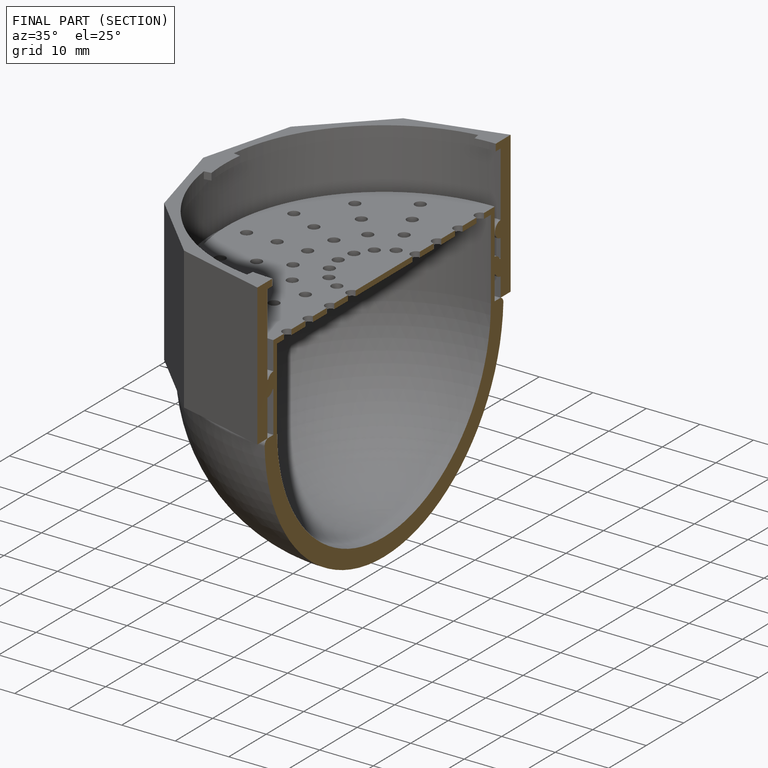
[diagram: finished part — half-section view (interior)]
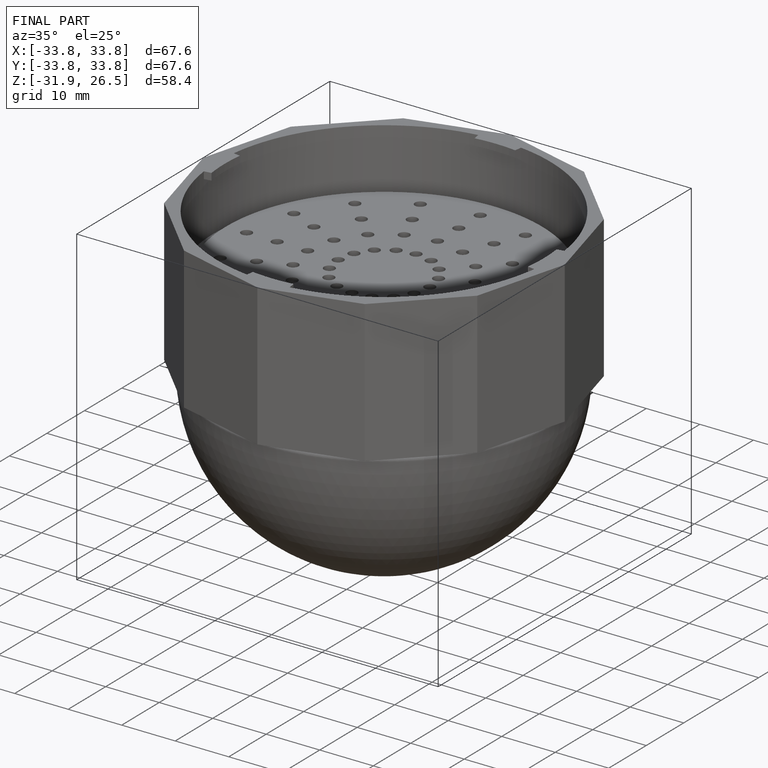
[diagram: finished part — iso view with bounding-box wireframe]
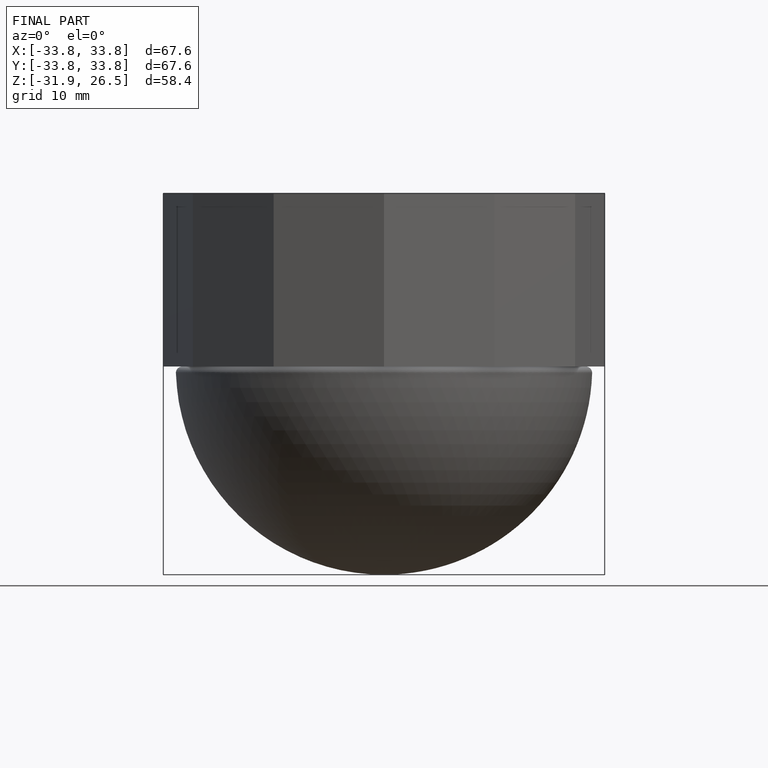
[diagram: finished part — front view with bounding-box wireframe]
